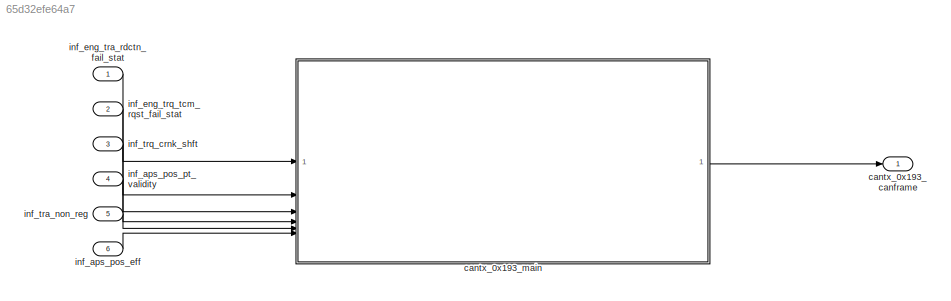
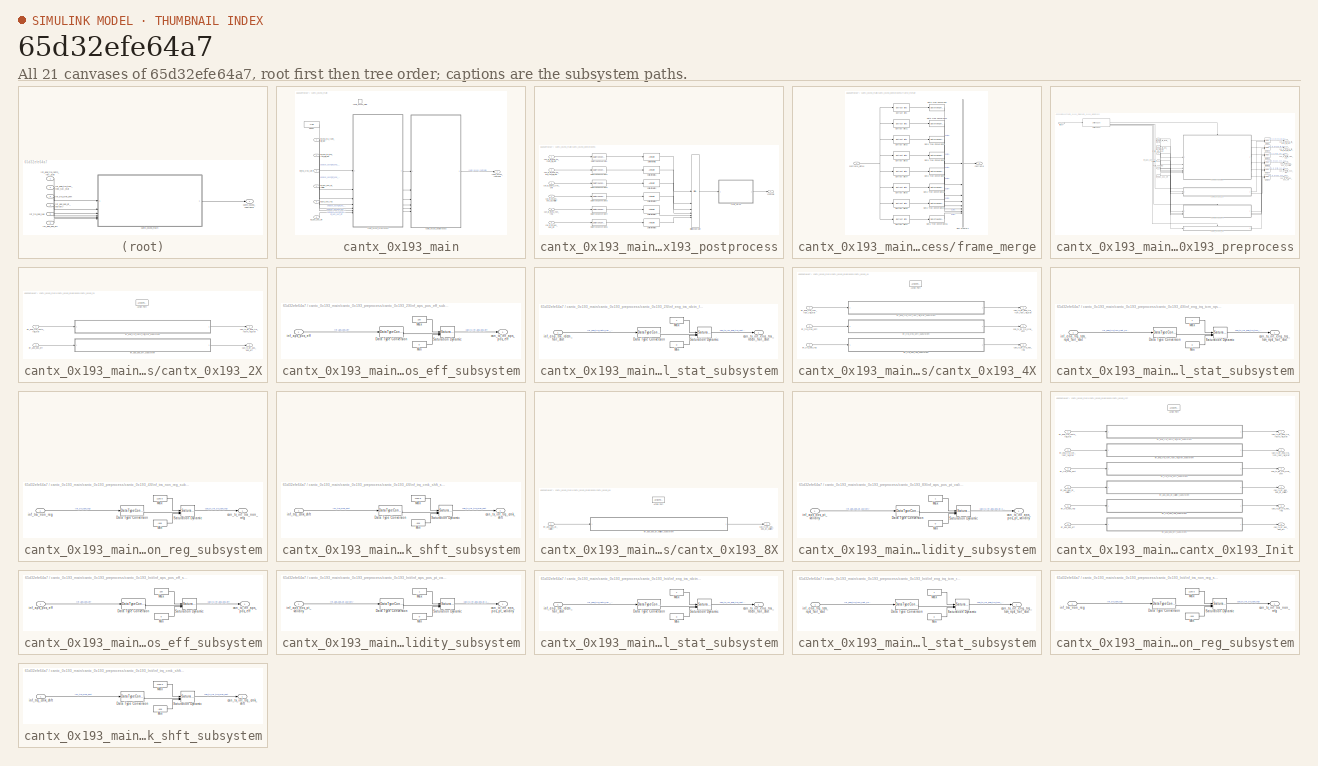
[diagram: thumbnail index - all 21 canvases of the model, root first then tree order]
MODEL slx_65d32efe64a7
KIND model
CONFIG AbsTol = auto
CONFIG EnableMultiTasking = off
CONFIG FixedStep = auto
CONFIG MaxStep = auto
CONFIG MinStep = auto
CONFIG RelTol = 1e-3
CONFIG SampleTimeConstraint = Unconstrained
CONFIG SolverName = FixedStepAuto
CONFIG StartTime = 0.0
CONFIG StopTime = 10.0
BLOCK [Outport] cantx_0x193_canframe
BLOCK [SubSystem] cantx_0x193_main
  TreatAsAtomicUnit = on
BLOCK [Outport] cantx_0x193_main/cantx_0x193_canframe
BLOCK [TriggerPort] cantx_0x193_main/cantx_0x193_main
  FunctionName = cantx_0x193_main
  FunctionVisibility = scoped
  IsSimulinkFunction = on
  StatesWhenEnabling = held
  TriggerType = function-call
  VariantControl = (inherit)
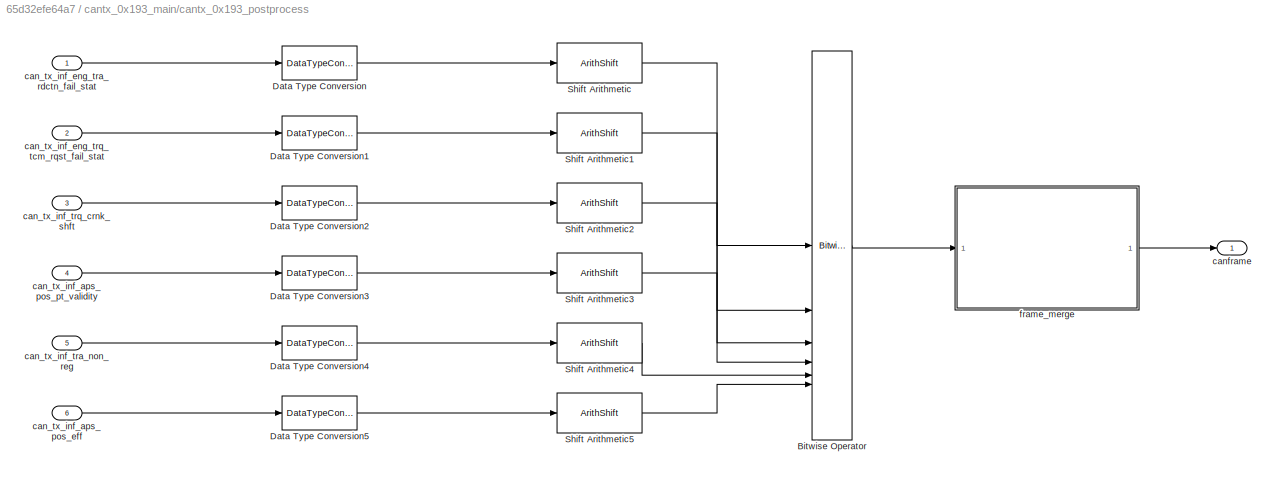
BLOCK [SubSystem] cantx_0x193_main/cantx_0x193_postprocess
BLOCK [Reference] cantx_0x193_main/cantx_0x193_postprocess/Bitwise Operator  REF=simulink/Logic and Bit
Operations/Bitwise
Operator
  SourceBlock = simulink/Logic and Bit\nOperations/Bitwise\nOperator
  SourceType = Bitwise Operator
BLOCK [DataTypeConversion] cantx_0x193_main/cantx_0x193_postprocess/Data Type Conversion
  ConvertRealWorld = Stored Integer (SI)
  OutDataTypeStr = uint64
  RndMeth = Floor
  SaturateOnIntegerOverflow = off
BLOCK [DataTypeConversion] cantx_0x193_main/cantx_0x193_postprocess/Data Type Conversion1
  ConvertRealWorld = Stored Integer (SI)
  OutDataTypeStr = uint64
  RndMeth = Floor
  SaturateOnIntegerOverflow = off
BLOCK [DataTypeConversion] cantx_0x193_main/cantx_0x193_postprocess/Data Type Conversion2
  ConvertRealWorld = Stored Integer (SI)
  OutDataTypeStr = uint64
  RndMeth = Floor
  SaturateOnIntegerOverflow = off
BLOCK [DataTypeConversion] cantx_0x193_main/cantx_0x193_postprocess/Data Type Conversion3
  ConvertRealWorld = Stored Integer (SI)
  OutDataTypeStr = uint64
  RndMeth = Floor
  SaturateOnIntegerOverflow = off
BLOCK [DataTypeConversion] cantx_0x193_main/cantx_0x193_postprocess/Data Type Conversion4
  ConvertRealWorld = Stored Integer (SI)
  OutDataTypeStr = uint64
  RndMeth = Floor
  SaturateOnIntegerOverflow = off
BLOCK [DataTypeConversion] cantx_0x193_main/cantx_0x193_postprocess/Data Type Conversion5
  ConvertRealWorld = Stored Integer (SI)
  OutDataTypeStr = uint64
  RndMeth = Floor
  SaturateOnIntegerOverflow = off
BLOCK [ArithShift] cantx_0x193_main/cantx_0x193_postprocess/Shift Arithmetic
  BitShiftDirection = Left
  BitShiftNumber = 63
  InputPortMap = u0
BLOCK [ArithShift] cantx_0x193_main/cantx_0x193_postprocess/Shift Arithmetic1
  BitShiftDirection = Left
  BitShiftNumber = 62
  InputPortMap = u0
BLOCK [ArithShift] cantx_0x193_main/cantx_0x193_postprocess/Shift Arithmetic2
  BitShiftDirection = Left
  BitShiftNumber = 48
  InputPortMap = u0
BLOCK [ArithShift] cantx_0x193_main/cantx_0x193_postprocess/Shift Arithmetic3
  BitShiftDirection = Left
  BitShiftNumber = 31
  InputPortMap = u0
BLOCK [ArithShift] cantx_0x193_main/cantx_0x193_postprocess/Shift Arithmetic4
  BitShiftDirection = Left
  BitShiftNumber = 16
  InputPortMap = u0
BLOCK [ArithShift] cantx_0x193_main/cantx_0x193_postprocess/Shift Arithmetic5
  BitShiftDirection = Left
  BitShiftNumber = 8
  InputPortMap = u0
BLOCK [Inport] cantx_0x193_main/cantx_0x193_postprocess/can_tx_inf_aps_pos_eff
  Port = 6
BLOCK [Inport] cantx_0x193_main/cantx_0x193_postprocess/can_tx_inf_aps_pos_pt_validity
  Port = 4
BLOCK [Inport] cantx_0x193_main/cantx_0x193_postprocess/can_tx_inf_eng_tra_rdctn_fail_stat
BLOCK [Inport] cantx_0x193_main/cantx_0x193_postprocess/can_tx_inf_eng_trq_tcm_rqst_fail_stat
  Port = 2
BLOCK [Inport] cantx_0x193_main/cantx_0x193_postprocess/can_tx_inf_tra_non_reg
  Port = 5
BLOCK [Inport] cantx_0x193_main/cantx_0x193_postprocess/can_tx_inf_trq_crnk_shft
  Port = 3
BLOCK [Outport] cantx_0x193_main/cantx_0x193_postprocess/canframe
BLOCK [SubSystem] cantx_0x193_main/cantx_0x193_postprocess/frame_merge
  RTWSystemCode = Reusable function
BLOCK [BusCreator] cantx_0x193_main/cantx_0x193_postprocess/frame_merge/Bus Creator1
  DisplayOption = bar
  InheritFromInputs = on
  Inputs = Byte0,Byte1,Byte2,Byte3,Byte4,Byte5,Byte6,Byte7
  NonVirtualBus = on
  OutDataTypeStr = Bus: canframe
BLOCK [DataTypeConversion] cantx_0x193_main/cantx_0x193_postprocess/frame_merge/Data Type Conversion
  ConvertRealWorld = Stored Integer (SI)
  OutDataTypeStr = uint8
  RndMeth = Floor
  SaturateOnIntegerOverflow = off
BLOCK [DataTypeConversion] cantx_0x193_main/cantx_0x193_postprocess/frame_merge/Data Type Conversion1
  ConvertRealWorld = Stored Integer (SI)
  OutDataTypeStr = uint8
  RndMeth = Floor
  SaturateOnIntegerOverflow = off
BLOCK [DataTypeConversion] cantx_0x193_main/cantx_0x193_postprocess/frame_merge/Data Type Conversion13
  ConvertRealWorld = Stored Integer (SI)
  OutDataTypeStr = uint8
  RndMeth = Floor
  SaturateOnIntegerOverflow = off
BLOCK [DataTypeConversion] cantx_0x193_main/cantx_0x193_postprocess/frame_merge/Data Type Conversion14
  ConvertRealWorld = Stored Integer (SI)
  OutDataTypeStr = uint8
  RndMeth = Floor
  SaturateOnIntegerOverflow = off
BLOCK [DataTypeConversion] cantx_0x193_main/cantx_0x193_postprocess/frame_merge/Data Type Conversion15
  ConvertRealWorld = Stored Integer (SI)
  OutDataTypeStr = uint8
  RndMeth = Floor
  SaturateOnIntegerOverflow = off
BLOCK [DataTypeConversion] cantx_0x193_main/cantx_0x193_postprocess/frame_merge/Data Type Conversion2
  ConvertRealWorld = Stored Integer (SI)
  OutDataTypeStr = uint8
  RndMeth = Floor
  SaturateOnIntegerOverflow = off
BLOCK [DataTypeConversion] cantx_0x193_main/cantx_0x193_postprocess/frame_merge/Data Type Conversion3
  ConvertRealWorld = Stored Integer (SI)
  OutDataTypeStr = uint8
  RndMeth = Floor
  SaturateOnIntegerOverflow = off
BLOCK [DataTypeConversion] cantx_0x193_main/cantx_0x193_postprocess/frame_merge/Data Type Conversion4
  ConvertRealWorld = Stored Integer (SI)
  OutDataTypeStr = uint8
  RndMeth = Floor
  SaturateOnIntegerOverflow = off
BLOCK [Reference] cantx_0x193_main/cantx_0x193_postprocess/frame_merge/Extract Bits  REF=simulink/Logic and Bit
Operations/Extract Bits
  SourceBlock = simulink/Logic and Bit\nOperations/Extract Bits
  SourceType = Extract Bits
BLOCK [Reference] cantx_0x193_main/cantx_0x193_postprocess/frame_merge/Extract Bits1  REF=simulink/Logic and Bit
Operations/Extract Bits
  SourceBlock = simulink/Logic and Bit\nOperations/Extract Bits
  SourceType = Extract Bits
BLOCK [Reference] cantx_0x193_main/cantx_0x193_postprocess/frame_merge/Extract Bits2  REF=simulink/Logic and Bit
Operations/Extract Bits
  SourceBlock = simulink/Logic and Bit\nOperations/Extract Bits
  SourceType = Extract Bits
BLOCK [Reference] cantx_0x193_main/cantx_0x193_postprocess/frame_merge/Extract Bits3  REF=simulink/Logic and Bit
Operations/Extract Bits
  SourceBlock = simulink/Logic and Bit\nOperations/Extract Bits
  SourceType = Extract Bits
BLOCK [Reference] cantx_0x193_main/cantx_0x193_postprocess/frame_merge/Extract Bits4  REF=simulink/Logic and Bit
Operations/Extract Bits
  SourceBlock = simulink/Logic and Bit\nOperations/Extract Bits
  SourceType = Extract Bits
BLOCK [Reference] cantx_0x193_main/cantx_0x193_postprocess/frame_merge/Extract Bits5  REF=simulink/Logic and Bit
Operations/Extract Bits
  SourceBlock = simulink/Logic and Bit\nOperations/Extract Bits
  SourceType = Extract Bits
BLOCK [Reference] cantx_0x193_main/cantx_0x193_postprocess/frame_merge/Extract Bits6  REF=simulink/Logic and Bit
Operations/Extract Bits
  SourceBlock = simulink/Logic and Bit\nOperations/Extract Bits
  SourceType = Extract Bits
BLOCK [Reference] cantx_0x193_main/cantx_0x193_postprocess/frame_merge/Extract Bits7  REF=simulink/Logic and Bit
Operations/Extract Bits
  SourceBlock = simulink/Logic and Bit\nOperations/Extract Bits
  SourceType = Extract Bits
BLOCK [Outport] cantx_0x193_main/cantx_0x193_postprocess/frame_merge/canframe
BLOCK [Inport] cantx_0x193_main/cantx_0x193_postprocess/frame_merge/canframe_uint64
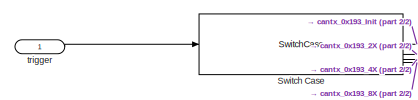
[diagram: cantx_0x193_main/cantx_0x193_preprocess - part 1/2, top left region]
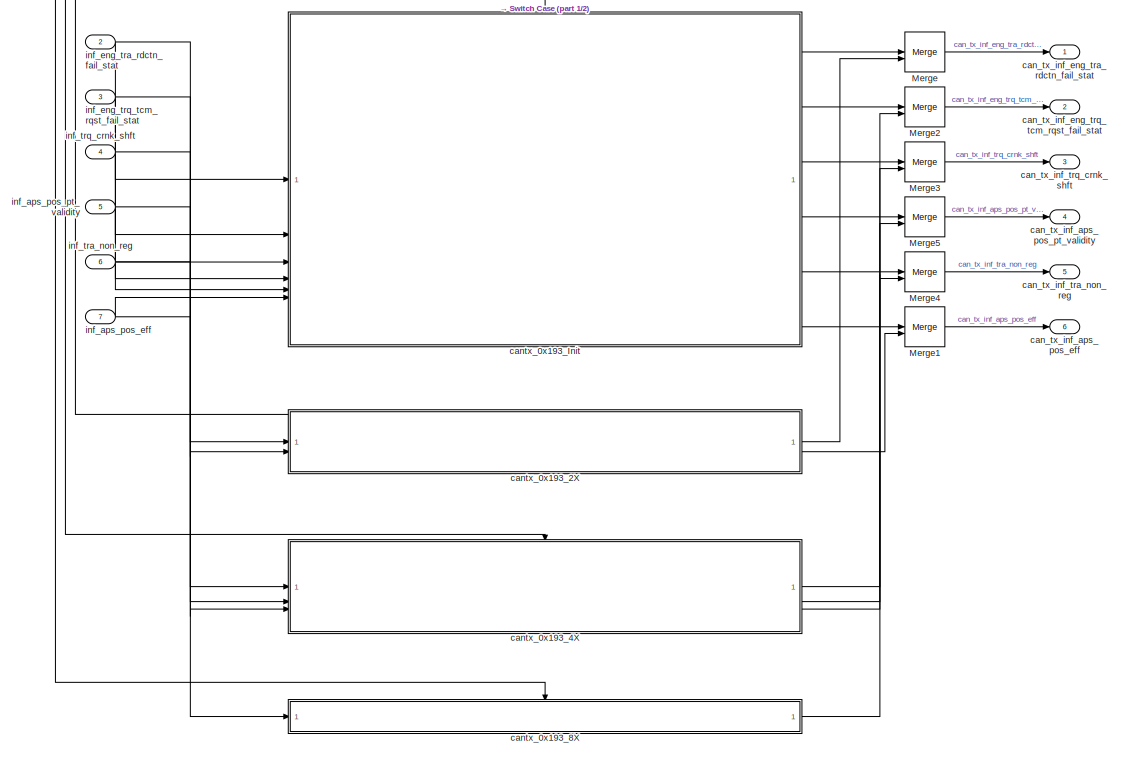
[diagram: cantx_0x193_main/cantx_0x193_preprocess - part 2/2, right side, full height]
BLOCK [SubSystem] cantx_0x193_main/cantx_0x193_preprocess
BLOCK [Merge] cantx_0x193_main/cantx_0x193_preprocess/Merge
BLOCK [Merge] cantx_0x193_main/cantx_0x193_preprocess/Merge1
BLOCK [Merge] cantx_0x193_main/cantx_0x193_preprocess/Merge2
BLOCK [Merge] cantx_0x193_main/cantx_0x193_preprocess/Merge3
BLOCK [Merge] cantx_0x193_main/cantx_0x193_preprocess/Merge4
BLOCK [Merge] cantx_0x193_main/cantx_0x193_preprocess/Merge5
BLOCK [SwitchCase] cantx_0x193_main/cantx_0x193_preprocess/Switch Case
  CaseConditions = {PLCANI_APCNTL_SET_INF_TYPE.PLCANI_APCNTL_SET_INF_INIT,PLCANI_APCNTL_SET_INF_TYPE.PLCANI_APCNTL_SET_INF_2X,PLCANI_APCNTL_SET_INF_TYPE.PLCANI_APCNTL_SET_INF_4X,PLCANI_APCNTL_SET_INF_TYPE.PLCANI_APCNTL_SET_INF_8X}
  ShowDefaultCase = off
BLOCK [Outport] cantx_0x193_main/cantx_0x193_preprocess/can_tx_inf_aps_pos_eff
  Port = 6
BLOCK [Outport] cantx_0x193_main/cantx_0x193_preprocess/can_tx_inf_aps_pos_pt_validity
  Port = 4
BLOCK [Outport] cantx_0x193_main/cantx_0x193_preprocess/can_tx_inf_eng_tra_rdctn_fail_stat
BLOCK [Outport] cantx_0x193_main/cantx_0x193_preprocess/can_tx_inf_eng_trq_tcm_rqst_fail_stat
  Port = 2
BLOCK [Outport] cantx_0x193_main/cantx_0x193_preprocess/can_tx_inf_tra_non_reg
  Port = 5
BLOCK [Outport] cantx_0x193_main/cantx_0x193_preprocess/can_tx_inf_trq_crnk_shft
  Port = 3
BLOCK [SubSystem] cantx_0x193_main/cantx_0x193_preprocess/cantx_0x193_2X
  RTWFcnNameOpts = Use subsystem name
  RTWSystemCode = Reusable function
  TreatAsAtomicUnit = on
BLOCK [ActionPort] cantx_0x193_main/cantx_0x193_preprocess/cantx_0x193_2X/Action Port
  ActionPortLabel = case [ PLCANI_APCNTL_SET_INF_2X ]:
BLOCK [Outport] cantx_0x193_main/cantx_0x193_preprocess/cantx_0x193_2X/can_tx_inf_aps_pos_eff
  Port = 2
BLOCK [Outport] cantx_0x193_main/cantx_0x193_preprocess/cantx_0x193_2X/can_tx_inf_eng_tra_rdctn_fail_stat
BLOCK [Inport] cantx_0x193_main/cantx_0x193_preprocess/cantx_0x193_2X/inf_aps_pos_eff
  Port = 2
BLOCK [SubSystem] cantx_0x193_main/cantx_0x193_preprocess/cantx_0x193_2X/inf_aps_pos_eff_subsystem
  RTWFcnNameOpts = Use subsystem name
  RTWSystemCode = Reusable function
  TreatAsAtomicUnit = on
BLOCK [DataTypeConversion] cantx_0x193_main/cantx_0x193_preprocess/cantx_0x193_2X/inf_aps_pos_eff_subsystem/Data Type Conversion
  ConvertRealWorld = Stored Integer (SI)
  RndMeth = Floor
  SaturateOnIntegerOverflow = off
BLOCK [Constant] cantx_0x193_main/cantx_0x193_preprocess/cantx_0x193_2X/inf_aps_pos_eff_subsystem/Max
  OutDataTypeStr = Inherit: Inherit via back propagation
  Value = 100
BLOCK [Constant] cantx_0x193_main/cantx_0x193_preprocess/cantx_0x193_2X/inf_aps_pos_eff_subsystem/Min
  OutDataTypeStr = Inherit: Inherit via back propagation
  Value = 0
BLOCK [Reference] cantx_0x193_main/cantx_0x193_preprocess/cantx_0x193_2X/inf_aps_pos_eff_subsystem/Saturation Dynamic  REF=simulink/Discontinuities/Saturation
Dynamic
  SourceBlock = simulink/Discontinuities/Saturation\nDynamic
  SourceType = Saturation Dynamic
BLOCK [Outport] cantx_0x193_main/cantx_0x193_preprocess/cantx_0x193_2X/inf_aps_pos_eff_subsystem/can_tx_inf_aps_pos_eff
BLOCK [Inport] cantx_0x193_main/cantx_0x193_preprocess/cantx_0x193_2X/inf_aps_pos_eff_subsystem/inf_aps_pos_eff
BLOCK [Inport] cantx_0x193_main/cantx_0x193_preprocess/cantx_0x193_2X/inf_eng_tra_rdctn_fail_stat
BLOCK [SubSystem] cantx_0x193_main/cantx_0x193_preprocess/cantx_0x193_2X/inf_eng_tra_rdctn_fail_stat_subsystem
  RTWFcnNameOpts = Use subsystem name
  RTWSystemCode = Reusable function
  TreatAsAtomicUnit = on
BLOCK [DataTypeConversion] cantx_0x193_main/cantx_0x193_preprocess/cantx_0x193_2X/inf_eng_tra_rdctn_fail_stat_subsystem/Data Type Conversion
  ConvertRealWorld = Stored Integer (SI)
  RndMeth = Floor
  SaturateOnIntegerOverflow = off
BLOCK [Constant] cantx_0x193_main/cantx_0x193_preprocess/cantx_0x193_2X/inf_eng_tra_rdctn_fail_stat_subsystem/Max
  OutDataTypeStr = Inherit: Inherit via back propagation
BLOCK [Constant] cantx_0x193_main/cantx_0x193_preprocess/cantx_0x193_2X/inf_eng_tra_rdctn_fail_stat_subsystem/Min
  OutDataTypeStr = Inherit: Inherit via back propagation
  Value = 0
BLOCK [Reference] cantx_0x193_main/cantx_0x193_preprocess/cantx_0x193_2X/inf_eng_tra_rdctn_fail_stat_subsystem/Saturation Dynamic  REF=simulink/Discontinuities/Saturation
Dynamic
  SourceBlock = simulink/Discontinuities/Saturation\nDynamic
  SourceType = Saturation Dynamic
BLOCK [Outport] cantx_0x193_main/cantx_0x193_preprocess/cantx_0x193_2X/inf_eng_tra_rdctn_fail_stat_subsystem/can_tx_inf_eng_tra_rdctn_fail_stat
BLOCK [Inport] cantx_0x193_main/cantx_0x193_preprocess/cantx_0x193_2X/inf_eng_tra_rdctn_fail_stat_subsystem/inf_eng_tra_rdctn_fail_stat
BLOCK [SubSystem] cantx_0x193_main/cantx_0x193_preprocess/cantx_0x193_4X
  RTWFcnNameOpts = Use subsystem name
  RTWSystemCode = Reusable function
  TreatAsAtomicUnit = on
BLOCK [ActionPort] cantx_0x193_main/cantx_0x193_preprocess/cantx_0x193_4X/Action Port
  ActionPortLabel = case [ PLCANI_APCNTL_SET_INF_4X ]:
BLOCK [Outport] cantx_0x193_main/cantx_0x193_preprocess/cantx_0x193_4X/can_tx_inf_eng_trq_tcm_rqst_fail_stat
BLOCK [Outport] cantx_0x193_main/cantx_0x193_preprocess/cantx_0x193_4X/can_tx_inf_tra_non_reg
  Port = 3
BLOCK [Outport] cantx_0x193_main/cantx_0x193_preprocess/cantx_0x193_4X/can_tx_inf_trq_crnk_shft
  Port = 2
BLOCK [Inport] cantx_0x193_main/cantx_0x193_preprocess/cantx_0x193_4X/inf_eng_trq_tcm_rqst_fail_stat
BLOCK [SubSystem] cantx_0x193_main/cantx_0x193_preprocess/cantx_0x193_4X/inf_eng_trq_tcm_rqst_fail_stat_subsystem
  RTWFcnNameOpts = Use subsystem name
  RTWSystemCode = Reusable function
  TreatAsAtomicUnit = on
BLOCK [DataTypeConversion] cantx_0x193_main/cantx_0x193_preprocess/cantx_0x193_4X/inf_eng_trq_tcm_rqst_fail_stat_subsystem/Data Type Conversion
  ConvertRealWorld = Stored Integer (SI)
  RndMeth = Floor
  SaturateOnIntegerOverflow = off
BLOCK [Constant] cantx_0x193_main/cantx_0x193_preprocess/cantx_0x193_4X/inf_eng_trq_tcm_rqst_fail_stat_subsystem/Max
  OutDataTypeStr = Inherit: Inherit via back propagation
BLOCK [Constant] cantx_0x193_main/cantx_0x193_preprocess/cantx_0x193_4X/inf_eng_trq_tcm_rqst_fail_stat_subsystem/Min
  OutDataTypeStr = Inherit: Inherit via back propagation
  Value = 0
BLOCK [Reference] cantx_0x193_main/cantx_0x193_preprocess/cantx_0x193_4X/inf_eng_trq_tcm_rqst_fail_stat_subsystem/Saturation Dynamic  REF=simulink/Discontinuities/Saturation
Dynamic
  SourceBlock = simulink/Discontinuities/Saturation\nDynamic
  SourceType = Saturation Dynamic
BLOCK [Outport] cantx_0x193_main/cantx_0x193_preprocess/cantx_0x193_4X/inf_eng_trq_tcm_rqst_fail_stat_subsystem/can_tx_inf_eng_trq_tcm_rqst_fail_stat
BLOCK [Inport] cantx_0x193_main/cantx_0x193_preprocess/cantx_0x193_4X/inf_eng_trq_tcm_rqst_fail_stat_subsystem/inf_eng_trq_tcm_rqst_fail_stat
BLOCK [Inport] cantx_0x193_main/cantx_0x193_preprocess/cantx_0x193_4X/inf_tra_non_reg
  Port = 3
BLOCK [SubSystem] cantx_0x193_main/cantx_0x193_preprocess/cantx_0x193_4X/inf_tra_non_reg_subsystem
  RTWFcnNameOpts = Use subsystem name
  RTWSystemCode = Reusable function
  TreatAsAtomicUnit = on
BLOCK [DataTypeConversion] cantx_0x193_main/cantx_0x193_preprocess/cantx_0x193_4X/inf_tra_non_reg_subsystem/Data Type Conversion
  ConvertRealWorld = Stored Integer (SI)
  RndMeth = Floor
  SaturateOnIntegerOverflow = off
BLOCK [Constant] cantx_0x193_main/cantx_0x193_preprocess/cantx_0x193_4X/inf_tra_non_reg_subsystem/Max
  OutDataTypeStr = Inherit: Inherit via back propagation
  Value = 1199.5
BLOCK [Constant] cantx_0x193_main/cantx_0x193_preprocess/cantx_0x193_4X/inf_tra_non_reg_subsystem/Min
  OutDataTypeStr = Inherit: Inherit via back propagation
  Value = -848
BLOCK [Reference] cantx_0x193_main/cantx_0x193_preprocess/cantx_0x193_4X/inf_tra_non_reg_subsystem/Saturation Dynamic  REF=simulink/Discontinuities/Saturation
Dynamic
  SourceBlock = simulink/Discontinuities/Saturation\nDynamic
  SourceType = Saturation Dynamic
BLOCK [Outport] cantx_0x193_main/cantx_0x193_preprocess/cantx_0x193_4X/inf_tra_non_reg_subsystem/can_tx_inf_tra_non_reg
BLOCK [Inport] cantx_0x193_main/cantx_0x193_preprocess/cantx_0x193_4X/inf_tra_non_reg_subsystem/inf_tra_non_reg
BLOCK [Inport] cantx_0x193_main/cantx_0x193_preprocess/cantx_0x193_4X/inf_trq_crnk_shft
  Port = 2
BLOCK [SubSystem] cantx_0x193_main/cantx_0x193_preprocess/cantx_0x193_4X/inf_trq_crnk_shft_subsystem
  RTWFcnNameOpts = Use subsystem name
  RTWSystemCode = Reusable function
  TreatAsAtomicUnit = on
BLOCK [DataTypeConversion] cantx_0x193_main/cantx_0x193_preprocess/cantx_0x193_4X/inf_trq_crnk_shft_subsystem/Data Type Conversion
  ConvertRealWorld = Stored Integer (SI)
  RndMeth = Floor
  SaturateOnIntegerOverflow = off
BLOCK [Constant] cantx_0x193_main/cantx_0x193_preprocess/cantx_0x193_4X/inf_trq_crnk_shft_subsystem/Max
  OutDataTypeStr = Inherit: Inherit via back propagation
  Value = 1199.5
BLOCK [Constant] cantx_0x193_main/cantx_0x193_preprocess/cantx_0x193_4X/inf_trq_crnk_shft_subsystem/Min
  OutDataTypeStr = Inherit: Inherit via back propagation
  Value = -848
BLOCK [Reference] cantx_0x193_main/cantx_0x193_preprocess/cantx_0x193_4X/inf_trq_crnk_shft_subsystem/Saturation Dynamic  REF=simulink/Discontinuities/Saturation
Dynamic
  SourceBlock = simulink/Discontinuities/Saturation\nDynamic
  SourceType = Saturation Dynamic
BLOCK [Outport] cantx_0x193_main/cantx_0x193_preprocess/cantx_0x193_4X/inf_trq_crnk_shft_subsystem/can_tx_inf_trq_crnk_shft
BLOCK [Inport] cantx_0x193_main/cantx_0x193_preprocess/cantx_0x193_4X/inf_trq_crnk_shft_subsystem/inf_trq_crnk_shft
BLOCK [SubSystem] cantx_0x193_main/cantx_0x193_preprocess/cantx_0x193_8X
  RTWFcnNameOpts = Use subsystem name
  RTWSystemCode = Reusable function
  TreatAsAtomicUnit = on
BLOCK [ActionPort] cantx_0x193_main/cantx_0x193_preprocess/cantx_0x193_8X/Action Port
  ActionPortLabel = case [ PLCANI_APCNTL_SET_INF_8X ]:
BLOCK [Outport] cantx_0x193_main/cantx_0x193_preprocess/cantx_0x193_8X/can_tx_inf_aps_pos_pt_validity
BLOCK [Inport] cantx_0x193_main/cantx_0x193_preprocess/cantx_0x193_8X/inf_aps_pos_pt_validity
BLOCK [SubSystem] cantx_0x193_main/cantx_0x193_preprocess/cantx_0x193_8X/inf_aps_pos_pt_validity_subsystem
  RTWFcnNameOpts = Use subsystem name
  RTWSystemCode = Reusable function
  TreatAsAtomicUnit = on
BLOCK [DataTypeConversion] cantx_0x193_main/cantx_0x193_preprocess/cantx_0x193_8X/inf_aps_pos_pt_validity_subsystem/Data Type Conversion
  ConvertRealWorld = Stored Integer (SI)
  RndMeth = Floor
  SaturateOnIntegerOverflow = off
BLOCK [Constant] cantx_0x193_main/cantx_0x193_preprocess/cantx_0x193_8X/inf_aps_pos_pt_validity_subsystem/Max
  OutDataTypeStr = Inherit: Inherit via back propagation
BLOCK [Constant] cantx_0x193_main/cantx_0x193_preprocess/cantx_0x193_8X/inf_aps_pos_pt_validity_subsystem/Min
  OutDataTypeStr = Inherit: Inherit via back propagation
  Value = 0
BLOCK [Reference] cantx_0x193_main/cantx_0x193_preprocess/cantx_0x193_8X/inf_aps_pos_pt_validity_subsystem/Saturation Dynamic  REF=simulink/Discontinuities/Saturation
Dynamic
  SourceBlock = simulink/Discontinuities/Saturation\nDynamic
  SourceType = Saturation Dynamic
BLOCK [Outport] cantx_0x193_main/cantx_0x193_preprocess/cantx_0x193_8X/inf_aps_pos_pt_validity_subsystem/can_tx_inf_aps_pos_pt_validity
BLOCK [Inport] cantx_0x193_main/cantx_0x193_preprocess/cantx_0x193_8X/inf_aps_pos_pt_validity_subsystem/inf_aps_pos_pt_validity
BLOCK [SubSystem] cantx_0x193_main/cantx_0x193_preprocess/cantx_0x193_Init
  RTWFcnNameOpts = Use subsystem name
  RTWSystemCode = Reusable function
  TreatAsAtomicUnit = on
BLOCK [ActionPort] cantx_0x193_main/cantx_0x193_preprocess/cantx_0x193_Init/Action Port
  ActionPortLabel = case [ PLCANI_APCNTL_SET_INF_INIT ]:
BLOCK [Outport] cantx_0x193_main/cantx_0x193_preprocess/cantx_0x193_Init/can_tx_inf_aps_pos_eff
  Port = 6
BLOCK [Outport] cantx_0x193_main/cantx_0x193_preprocess/cantx_0x193_Init/can_tx_inf_aps_pos_pt_validity
  Port = 4
BLOCK [Outport] cantx_0x193_main/cantx_0x193_preprocess/cantx_0x193_Init/can_tx_inf_eng_tra_rdctn_fail_stat
BLOCK [Outport] cantx_0x193_main/cantx_0x193_preprocess/cantx_0x193_Init/can_tx_inf_eng_trq_tcm_rqst_fail_stat
  Port = 2
BLOCK [Outport] cantx_0x193_main/cantx_0x193_preprocess/cantx_0x193_Init/can_tx_inf_tra_non_reg
  Port = 5
BLOCK [Outport] cantx_0x193_main/cantx_0x193_preprocess/cantx_0x193_Init/can_tx_inf_trq_crnk_shft
  Port = 3
BLOCK [Inport] cantx_0x193_main/cantx_0x193_preprocess/cantx_0x193_Init/inf_aps_pos_eff
  Port = 6
BLOCK [SubSystem] cantx_0x193_main/cantx_0x193_preprocess/cantx_0x193_Init/inf_aps_pos_eff_subsystem
  RTWFcnNameOpts = Use subsystem name
  RTWSystemCode = Reusable function
  TreatAsAtomicUnit = on
BLOCK [DataTypeConversion] cantx_0x193_main/cantx_0x193_preprocess/cantx_0x193_Init/inf_aps_pos_eff_subsystem/Data Type Conversion
  ConvertRealWorld = Stored Integer (SI)
  RndMeth = Floor
  SaturateOnIntegerOverflow = off
BLOCK [Constant] cantx_0x193_main/cantx_0x193_preprocess/cantx_0x193_Init/inf_aps_pos_eff_subsystem/Max
  OutDataTypeStr = Inherit: Inherit via back propagation
  Value = 100
BLOCK [Constant] cantx_0x193_main/cantx_0x193_preprocess/cantx_0x193_Init/inf_aps_pos_eff_subsystem/Min
  OutDataTypeStr = Inherit: Inherit via back propagation
  Value = 0
BLOCK [Reference] cantx_0x193_main/cantx_0x193_preprocess/cantx_0x193_Init/inf_aps_pos_eff_subsystem/Saturation Dynamic  REF=simulink/Discontinuities/Saturation
Dynamic
  SourceBlock = simulink/Discontinuities/Saturation\nDynamic
  SourceType = Saturation Dynamic
BLOCK [Outport] cantx_0x193_main/cantx_0x193_preprocess/cantx_0x193_Init/inf_aps_pos_eff_subsystem/can_tx_inf_aps_pos_eff
BLOCK [Inport] cantx_0x193_main/cantx_0x193_preprocess/cantx_0x193_Init/inf_aps_pos_eff_subsystem/inf_aps_pos_eff
BLOCK [Inport] cantx_0x193_main/cantx_0x193_preprocess/cantx_0x193_Init/inf_aps_pos_pt_validity
  Port = 4
BLOCK [SubSystem] cantx_0x193_main/cantx_0x193_preprocess/cantx_0x193_Init/inf_aps_pos_pt_validity_subsystem
  RTWFcnNameOpts = Use subsystem name
  RTWSystemCode = Reusable function
  TreatAsAtomicUnit = on
BLOCK [DataTypeConversion] cantx_0x193_main/cantx_0x193_preprocess/cantx_0x193_Init/inf_aps_pos_pt_validity_subsystem/Data Type Conversion
  ConvertRealWorld = Stored Integer (SI)
  RndMeth = Floor
  SaturateOnIntegerOverflow = off
BLOCK [Constant] cantx_0x193_main/cantx_0x193_preprocess/cantx_0x193_Init/inf_aps_pos_pt_validity_subsystem/Max
  OutDataTypeStr = Inherit: Inherit via back propagation
BLOCK [Constant] cantx_0x193_main/cantx_0x193_preprocess/cantx_0x193_Init/inf_aps_pos_pt_validity_subsystem/Min
  OutDataTypeStr = Inherit: Inherit via back propagation
  Value = 0
BLOCK [Reference] cantx_0x193_main/cantx_0x193_preprocess/cantx_0x193_Init/inf_aps_pos_pt_validity_subsystem/Saturation Dynamic  REF=simulink/Discontinuities/Saturation
Dynamic
  SourceBlock = simulink/Discontinuities/Saturation\nDynamic
  SourceType = Saturation Dynamic
BLOCK [Outport] cantx_0x193_main/cantx_0x193_preprocess/cantx_0x193_Init/inf_aps_pos_pt_validity_subsystem/can_tx_inf_aps_pos_pt_validity
BLOCK [Inport] cantx_0x193_main/cantx_0x193_preprocess/cantx_0x193_Init/inf_aps_pos_pt_validity_subsystem/inf_aps_pos_pt_validity
BLOCK [Inport] cantx_0x193_main/cantx_0x193_preprocess/cantx_0x193_Init/inf_eng_tra_rdctn_fail_stat
BLOCK [SubSystem] cantx_0x193_main/cantx_0x193_preprocess/cantx_0x193_Init/inf_eng_tra_rdctn_fail_stat_subsystem
  RTWFcnNameOpts = Use subsystem name
  RTWSystemCode = Reusable function
  TreatAsAtomicUnit = on
BLOCK [DataTypeConversion] cantx_0x193_main/cantx_0x193_preprocess/cantx_0x193_Init/inf_eng_tra_rdctn_fail_stat_subsystem/Data Type Conversion
  ConvertRealWorld = Stored Integer (SI)
  RndMeth = Floor
  SaturateOnIntegerOverflow = off
BLOCK [Constant] cantx_0x193_main/cantx_0x193_preprocess/cantx_0x193_Init/inf_eng_tra_rdctn_fail_stat_subsystem/Max
  OutDataTypeStr = Inherit: Inherit via back propagation
BLOCK [Constant] cantx_0x193_main/cantx_0x193_preprocess/cantx_0x193_Init/inf_eng_tra_rdctn_fail_stat_subsystem/Min
  OutDataTypeStr = Inherit: Inherit via back propagation
  Value = 0
BLOCK [Reference] cantx_0x193_main/cantx_0x193_preprocess/cantx_0x193_Init/inf_eng_tra_rdctn_fail_stat_subsystem/Saturation Dynamic  REF=simulink/Discontinuities/Saturation
Dynamic
  SourceBlock = simulink/Discontinuities/Saturation\nDynamic
  SourceType = Saturation Dynamic
BLOCK [Outport] cantx_0x193_main/cantx_0x193_preprocess/cantx_0x193_Init/inf_eng_tra_rdctn_fail_stat_subsystem/can_tx_inf_eng_tra_rdctn_fail_stat
BLOCK [Inport] cantx_0x193_main/cantx_0x193_preprocess/cantx_0x193_Init/inf_eng_tra_rdctn_fail_stat_subsystem/inf_eng_tra_rdctn_fail_stat
BLOCK [Inport] cantx_0x193_main/cantx_0x193_preprocess/cantx_0x193_Init/inf_eng_trq_tcm_rqst_fail_stat
  Port = 2
BLOCK [SubSystem] cantx_0x193_main/cantx_0x193_preprocess/cantx_0x193_Init/inf_eng_trq_tcm_rqst_fail_stat_subsystem
  RTWFcnNameOpts = Use subsystem name
  RTWSystemCode = Reusable function
  TreatAsAtomicUnit = on
BLOCK [DataTypeConversion] cantx_0x193_main/cantx_0x193_preprocess/cantx_0x193_Init/inf_eng_trq_tcm_rqst_fail_stat_subsystem/Data Type Conversion
  ConvertRealWorld = Stored Integer (SI)
  RndMeth = Floor
  SaturateOnIntegerOverflow = off
BLOCK [Constant] cantx_0x193_main/cantx_0x193_preprocess/cantx_0x193_Init/inf_eng_trq_tcm_rqst_fail_stat_subsystem/Max
  OutDataTypeStr = Inherit: Inherit via back propagation
BLOCK [Constant] cantx_0x193_main/cantx_0x193_preprocess/cantx_0x193_Init/inf_eng_trq_tcm_rqst_fail_stat_subsystem/Min
  OutDataTypeStr = Inherit: Inherit via back propagation
  Value = 0
BLOCK [Reference] cantx_0x193_main/cantx_0x193_preprocess/cantx_0x193_Init/inf_eng_trq_tcm_rqst_fail_stat_subsystem/Saturation Dynamic  REF=simulink/Discontinuities/Saturation
Dynamic
  SourceBlock = simulink/Discontinuities/Saturation\nDynamic
  SourceType = Saturation Dynamic
BLOCK [Outport] cantx_0x193_main/cantx_0x193_preprocess/cantx_0x193_Init/inf_eng_trq_tcm_rqst_fail_stat_subsystem/can_tx_inf_eng_trq_tcm_rqst_fail_stat
BLOCK [Inport] cantx_0x193_main/cantx_0x193_preprocess/cantx_0x193_Init/inf_eng_trq_tcm_rqst_fail_stat_subsystem/inf_eng_trq_tcm_rqst_fail_stat
BLOCK [Inport] cantx_0x193_main/cantx_0x193_preprocess/cantx_0x193_Init/inf_tra_non_reg
  Port = 5
BLOCK [SubSystem] cantx_0x193_main/cantx_0x193_preprocess/cantx_0x193_Init/inf_tra_non_reg_subsystem
  RTWFcnNameOpts = Use subsystem name
  RTWSystemCode = Reusable function
  TreatAsAtomicUnit = on
BLOCK [DataTypeConversion] cantx_0x193_main/cantx_0x193_preprocess/cantx_0x193_Init/inf_tra_non_reg_subsystem/Data Type Conversion
  ConvertRealWorld = Stored Integer (SI)
  RndMeth = Floor
  SaturateOnIntegerOverflow = off
BLOCK [Constant] cantx_0x193_main/cantx_0x193_preprocess/cantx_0x193_Init/inf_tra_non_reg_subsystem/Max
  OutDataTypeStr = Inherit: Inherit via back propagation
  Value = 1199.5
BLOCK [Constant] cantx_0x193_main/cantx_0x193_preprocess/cantx_0x193_Init/inf_tra_non_reg_subsystem/Min
  OutDataTypeStr = Inherit: Inherit via back propagation
  Value = -848
BLOCK [Reference] cantx_0x193_main/cantx_0x193_preprocess/cantx_0x193_Init/inf_tra_non_reg_subsystem/Saturation Dynamic  REF=simulink/Discontinuities/Saturation
Dynamic
  SourceBlock = simulink/Discontinuities/Saturation\nDynamic
  SourceType = Saturation Dynamic
BLOCK [Outport] cantx_0x193_main/cantx_0x193_preprocess/cantx_0x193_Init/inf_tra_non_reg_subsystem/can_tx_inf_tra_non_reg
BLOCK [Inport] cantx_0x193_main/cantx_0x193_preprocess/cantx_0x193_Init/inf_tra_non_reg_subsystem/inf_tra_non_reg
BLOCK [Inport] cantx_0x193_main/cantx_0x193_preprocess/cantx_0x193_Init/inf_trq_crnk_shft
  Port = 3
BLOCK [SubSystem] cantx_0x193_main/cantx_0x193_preprocess/cantx_0x193_Init/inf_trq_crnk_shft_subsystem
  RTWFcnNameOpts = Use subsystem name
  RTWSystemCode = Reusable function
  TreatAsAtomicUnit = on
BLOCK [DataTypeConversion] cantx_0x193_main/cantx_0x193_preprocess/cantx_0x193_Init/inf_trq_crnk_shft_subsystem/Data Type Conversion
  ConvertRealWorld = Stored Integer (SI)
  RndMeth = Floor
  SaturateOnIntegerOverflow = off
BLOCK [Constant] cantx_0x193_main/cantx_0x193_preprocess/cantx_0x193_Init/inf_trq_crnk_shft_subsystem/Max
  OutDataTypeStr = Inherit: Inherit via back propagation
  Value = 1199.5
BLOCK [Constant] cantx_0x193_main/cantx_0x193_preprocess/cantx_0x193_Init/inf_trq_crnk_shft_subsystem/Min
  OutDataTypeStr = Inherit: Inherit via back propagation
  Value = -848
BLOCK [Reference] cantx_0x193_main/cantx_0x193_preprocess/cantx_0x193_Init/inf_trq_crnk_shft_subsystem/Saturation Dynamic  REF=simulink/Discontinuities/Saturation
Dynamic
  SourceBlock = simulink/Discontinuities/Saturation\nDynamic
  SourceType = Saturation Dynamic
BLOCK [Outport] cantx_0x193_main/cantx_0x193_preprocess/cantx_0x193_Init/inf_trq_crnk_shft_subsystem/can_tx_inf_trq_crnk_shft
BLOCK [Inport] cantx_0x193_main/cantx_0x193_preprocess/cantx_0x193_Init/inf_trq_crnk_shft_subsystem/inf_trq_crnk_shft
BLOCK [Inport] cantx_0x193_main/cantx_0x193_preprocess/inf_aps_pos_eff
  Port = 7
BLOCK [Inport] cantx_0x193_main/cantx_0x193_preprocess/inf_aps_pos_pt_validity
  Port = 5
BLOCK [Inport] cantx_0x193_main/cantx_0x193_preprocess/inf_eng_tra_rdctn_fail_stat
  Port = 2
BLOCK [Inport] cantx_0x193_main/cantx_0x193_preprocess/inf_eng_trq_tcm_rqst_fail_stat
  Port = 3
BLOCK [Inport] cantx_0x193_main/cantx_0x193_preprocess/inf_tra_non_reg
  Port = 6
BLOCK [Inport] cantx_0x193_main/cantx_0x193_preprocess/inf_trq_crnk_shft
  Port = 4
BLOCK [Inport] cantx_0x193_main/cantx_0x193_preprocess/trigger
BLOCK [Inport] cantx_0x193_main/inf_aps_pos_eff
  Port = 6
BLOCK [Inport] cantx_0x193_main/inf_aps_pos_pt_validity
  Port = 4
BLOCK [Inport] cantx_0x193_main/inf_eng_tra_rdctn_fail_stat
BLOCK [Inport] cantx_0x193_main/inf_eng_trq_tcm_rqst_fail_stat
  Port = 2
BLOCK [Inport] cantx_0x193_main/inf_tra_non_reg
  Port = 5
BLOCK [Inport] cantx_0x193_main/inf_trq_crnk_shft
  Port = 3
BLOCK [ArgIn] cantx_0x193_main/trigger
  ArgumentName = trigger
  DisableCoverage = on
  OutDataTypeStr = Enum: PLCANI_APCNTL_SET_INF_TYPE
BLOCK [Inport] inf_aps_pos_eff
  Port = 6
BLOCK [Inport] inf_aps_pos_pt_validity
  Port = 4
BLOCK [Inport] inf_eng_tra_rdctn_fail_stat
BLOCK [Inport] inf_eng_trq_tcm_rqst_fail_stat
  Port = 2
BLOCK [Inport] inf_tra_non_reg
  Port = 5
BLOCK [Inport] inf_trq_crnk_shft
  Port = 3
LINE cantx_0x193_main/cantx_0x193_postprocess/Bitwise Operator:1 -> cantx_0x193_main/cantx_0x193_postprocess/frame_merge:1
LINE cantx_0x193_main/cantx_0x193_postprocess/Data Type Conversion1:1 -> cantx_0x193_main/cantx_0x193_postprocess/Shift Arithmetic1:1
LINE cantx_0x193_main/cantx_0x193_postprocess/Data Type Conversion2:1 -> cantx_0x193_main/cantx_0x193_postprocess/Shift Arithmetic2:1
LINE cantx_0x193_main/cantx_0x193_postprocess/Data Type Conversion3:1 -> cantx_0x193_main/cantx_0x193_postprocess/Shift Arithmetic3:1
LINE cantx_0x193_main/cantx_0x193_postprocess/Data Type Conversion4:1 -> cantx_0x193_main/cantx_0x193_postprocess/Shift Arithmetic4:1
LINE cantx_0x193_main/cantx_0x193_postprocess/Data Type Conversion5:1 -> cantx_0x193_main/cantx_0x193_postprocess/Shift Arithmetic5:1
LINE cantx_0x193_main/cantx_0x193_postprocess/Data Type Conversion:1 -> cantx_0x193_main/cantx_0x193_postprocess/Shift Arithmetic:1
LINE cantx_0x193_main/cantx_0x193_postprocess/Shift Arithmetic1:1 -> cantx_0x193_main/cantx_0x193_postprocess/Bitwise Operator:2
LINE cantx_0x193_main/cantx_0x193_postprocess/Shift Arithmetic2:1 -> cantx_0x193_main/cantx_0x193_postprocess/Bitwise Operator:3
LINE cantx_0x193_main/cantx_0x193_postprocess/Shift Arithmetic3:1 -> cantx_0x193_main/cantx_0x193_postprocess/Bitwise Operator:4
LINE cantx_0x193_main/cantx_0x193_postprocess/Shift Arithmetic4:1 -> cantx_0x193_main/cantx_0x193_postprocess/Bitwise Operator:5
LINE cantx_0x193_main/cantx_0x193_postprocess/Shift Arithmetic5:1 -> cantx_0x193_main/cantx_0x193_postprocess/Bitwise Operator:6
LINE cantx_0x193_main/cantx_0x193_postprocess/Shift Arithmetic:1 -> cantx_0x193_main/cantx_0x193_postprocess/Bitwise Operator:1
LINE cantx_0x193_main/cantx_0x193_postprocess/can_tx_inf_aps_pos_eff:1 -> cantx_0x193_main/cantx_0x193_postprocess/Data Type Conversion5:1
LINE cantx_0x193_main/cantx_0x193_postprocess/can_tx_inf_aps_pos_pt_validity:1 -> cantx_0x193_main/cantx_0x193_postprocess/Data Type Conversion3:1
LINE cantx_0x193_main/cantx_0x193_postprocess/can_tx_inf_eng_tra_rdctn_fail_stat:1 -> cantx_0x193_main/cantx_0x193_postprocess/Data Type Conversion:1
LINE cantx_0x193_main/cantx_0x193_postprocess/can_tx_inf_eng_trq_tcm_rqst_fail_stat:1 -> cantx_0x193_main/cantx_0x193_postprocess/Data Type Conversion1:1
LINE cantx_0x193_main/cantx_0x193_postprocess/can_tx_inf_tra_non_reg:1 -> cantx_0x193_main/cantx_0x193_postprocess/Data Type Conversion4:1
LINE cantx_0x193_main/cantx_0x193_postprocess/can_tx_inf_trq_crnk_shft:1 -> cantx_0x193_main/cantx_0x193_postprocess/Data Type Conversion2:1
LINE cantx_0x193_main/cantx_0x193_postprocess/frame_merge/Bus Creator1:1 -> cantx_0x193_main/cantx_0x193_postprocess/frame_merge/canframe:1
LINE cantx_0x193_main/cantx_0x193_postprocess/frame_merge/Data Type Conversion13:1 -> cantx_0x193_main/cantx_0x193_postprocess/frame_merge/Bus Creator1:6
LINE cantx_0x193_main/cantx_0x193_postprocess/frame_merge/Data Type Conversion14:1 -> cantx_0x193_main/cantx_0x193_postprocess/frame_merge/Bus Creator1:7
LINE cantx_0x193_main/cantx_0x193_postprocess/frame_merge/Data Type Conversion15:1 -> cantx_0x193_main/cantx_0x193_postprocess/frame_merge/Bus Creator1:8
LINE cantx_0x193_main/cantx_0x193_postprocess/frame_merge/Data Type Conversion1:1 -> cantx_0x193_main/cantx_0x193_postprocess/frame_merge/Bus Creator1:2
LINE cantx_0x193_main/cantx_0x193_postprocess/frame_merge/Data Type Conversion2:1 -> cantx_0x193_main/cantx_0x193_postprocess/frame_merge/Bus Creator1:3
LINE cantx_0x193_main/cantx_0x193_postprocess/frame_merge/Data Type Conversion3:1 -> cantx_0x193_main/cantx_0x193_postprocess/frame_merge/Bus Creator1:4
LINE cantx_0x193_main/cantx_0x193_postprocess/frame_merge/Data Type Conversion4:1 -> cantx_0x193_main/cantx_0x193_postprocess/frame_merge/Bus Creator1:5
LINE cantx_0x193_main/cantx_0x193_postprocess/frame_merge/Data Type Conversion:1 -> cantx_0x193_main/cantx_0x193_postprocess/frame_merge/Bus Creator1:1
LINE cantx_0x193_main/cantx_0x193_postprocess/frame_merge/Extract Bits1:1 -> cantx_0x193_main/cantx_0x193_postprocess/frame_merge/Data Type Conversion1:1
LINE cantx_0x193_main/cantx_0x193_postprocess/frame_merge/Extract Bits2:1 -> cantx_0x193_main/cantx_0x193_postprocess/frame_merge/Data Type Conversion2:1
LINE cantx_0x193_main/cantx_0x193_postprocess/frame_merge/Extract Bits3:1 -> cantx_0x193_main/cantx_0x193_postprocess/frame_merge/Data Type Conversion3:1
LINE cantx_0x193_main/cantx_0x193_postprocess/frame_merge/Extract Bits4:1 -> cantx_0x193_main/cantx_0x193_postprocess/frame_merge/Data Type Conversion4:1
LINE cantx_0x193_main/cantx_0x193_postprocess/frame_merge/Extract Bits5:1 -> cantx_0x193_main/cantx_0x193_postprocess/frame_merge/Data Type Conversion13:1
LINE cantx_0x193_main/cantx_0x193_postprocess/frame_merge/Extract Bits6:1 -> cantx_0x193_main/cantx_0x193_postprocess/frame_merge/Data Type Conversion14:1
LINE cantx_0x193_main/cantx_0x193_postprocess/frame_merge/Extract Bits7:1 -> cantx_0x193_main/cantx_0x193_postprocess/frame_merge/Data Type Conversion15:1
LINE cantx_0x193_main/cantx_0x193_postprocess/frame_merge/Extract Bits:1 -> cantx_0x193_main/cantx_0x193_postprocess/frame_merge/Data Type Conversion:1
NET cantx_0x193_main/cantx_0x193_postprocess/frame_merge/canframe_uint64:1 -> cantx_0x193_main/cantx_0x193_postprocess/frame_merge/Extract Bits1:1, cantx_0x193_main/cantx_0x193_postprocess/frame_merge/Extract Bits2:1, cantx_0x193_main/cantx_0x193_postprocess/frame_merge/Extract Bits3:1, cantx_0x193_main/cantx_0x193_postprocess/frame_merge/Extract Bits4:1, cantx_0x193_main/cantx_0x193_postprocess/frame_merge/Extract Bits5:1, cantx_0x193_main/cantx_0x193_postprocess/frame_merge/Extract Bits6:1, cantx_0x193_main/cantx_0x193_postprocess/frame_merge/Extract Bits7:1, cantx_0x193_main/cantx_0x193_postprocess/frame_merge/Extract Bits:1
LINE cantx_0x193_main/cantx_0x193_postprocess/frame_merge:1 -> cantx_0x193_main/cantx_0x193_postprocess/canframe:1
LINE cantx_0x193_main/cantx_0x193_postprocess:1 -> cantx_0x193_main/cantx_0x193_canframe:1
LINE cantx_0x193_main/cantx_0x193_preprocess/Merge1:1 -> cantx_0x193_main/cantx_0x193_preprocess/can_tx_inf_aps_pos_eff:1
LINE cantx_0x193_main/cantx_0x193_preprocess/Merge2:1 -> cantx_0x193_main/cantx_0x193_preprocess/can_tx_inf_eng_trq_tcm_rqst_fail_stat:1
LINE cantx_0x193_main/cantx_0x193_preprocess/Merge3:1 -> cantx_0x193_main/cantx_0x193_preprocess/can_tx_inf_trq_crnk_shft:1
LINE cantx_0x193_main/cantx_0x193_preprocess/Merge4:1 -> cantx_0x193_main/cantx_0x193_preprocess/can_tx_inf_tra_non_reg:1
LINE cantx_0x193_main/cantx_0x193_preprocess/Merge5:1 -> cantx_0x193_main/cantx_0x193_preprocess/can_tx_inf_aps_pos_pt_validity:1
LINE cantx_0x193_main/cantx_0x193_preprocess/Merge:1 -> cantx_0x193_main/cantx_0x193_preprocess/can_tx_inf_eng_tra_rdctn_fail_stat:1
LINE cantx_0x193_main/cantx_0x193_preprocess/Switch Case:1 -> cantx_0x193_main/cantx_0x193_preprocess/cantx_0x193_Init:ifaction
LINE cantx_0x193_main/cantx_0x193_preprocess/Switch Case:2 -> cantx_0x193_main/cantx_0x193_preprocess/cantx_0x193_2X:ifaction
LINE cantx_0x193_main/cantx_0x193_preprocess/Switch Case:3 -> cantx_0x193_main/cantx_0x193_preprocess/cantx_0x193_4X:ifaction
LINE cantx_0x193_main/cantx_0x193_preprocess/Switch Case:4 -> cantx_0x193_main/cantx_0x193_preprocess/cantx_0x193_8X:ifaction
LINE cantx_0x193_main/cantx_0x193_preprocess/cantx_0x193_2X/inf_aps_pos_eff:1 -> cantx_0x193_main/cantx_0x193_preprocess/cantx_0x193_2X/inf_aps_pos_eff_subsystem:1
LINE cantx_0x193_main/cantx_0x193_preprocess/cantx_0x193_2X/inf_aps_pos_eff_subsystem/Data Type Conversion:1 -> cantx_0x193_main/cantx_0x193_preprocess/cantx_0x193_2X/inf_aps_pos_eff_subsystem/Saturation Dynamic:2
LINE cantx_0x193_main/cantx_0x193_preprocess/cantx_0x193_2X/inf_aps_pos_eff_subsystem/Max:1 -> cantx_0x193_main/cantx_0x193_preprocess/cantx_0x193_2X/inf_aps_pos_eff_subsystem/Saturation Dynamic:1
LINE cantx_0x193_main/cantx_0x193_preprocess/cantx_0x193_2X/inf_aps_pos_eff_subsystem/Min:1 -> cantx_0x193_main/cantx_0x193_preprocess/cantx_0x193_2X/inf_aps_pos_eff_subsystem/Saturation Dynamic:3
LINE cantx_0x193_main/cantx_0x193_preprocess/cantx_0x193_2X/inf_aps_pos_eff_subsystem/Saturation Dynamic:1 -> cantx_0x193_main/cantx_0x193_preprocess/cantx_0x193_2X/inf_aps_pos_eff_subsystem/can_tx_inf_aps_pos_eff:1
LINE cantx_0x193_main/cantx_0x193_preprocess/cantx_0x193_2X/inf_aps_pos_eff_subsystem/inf_aps_pos_eff:1 -> cantx_0x193_main/cantx_0x193_preprocess/cantx_0x193_2X/inf_aps_pos_eff_subsystem/Data Type Conversion:1
LINE cantx_0x193_main/cantx_0x193_preprocess/cantx_0x193_2X/inf_aps_pos_eff_subsystem:1 -> cantx_0x193_main/cantx_0x193_preprocess/cantx_0x193_2X/can_tx_inf_aps_pos_eff:1
LINE cantx_0x193_main/cantx_0x193_preprocess/cantx_0x193_2X/inf_eng_tra_rdctn_fail_stat:1 -> cantx_0x193_main/cantx_0x193_preprocess/cantx_0x193_2X/inf_eng_tra_rdctn_fail_stat_subsystem:1
LINE cantx_0x193_main/cantx_0x193_preprocess/cantx_0x193_2X/inf_eng_tra_rdctn_fail_stat_subsystem/Data Type Conversion:1 -> cantx_0x193_main/cantx_0x193_preprocess/cantx_0x193_2X/inf_eng_tra_rdctn_fail_stat_subsystem/Saturation Dynamic:2
LINE cantx_0x193_main/cantx_0x193_preprocess/cantx_0x193_2X/inf_eng_tra_rdctn_fail_stat_subsystem/Max:1 -> cantx_0x193_main/cantx_0x193_preprocess/cantx_0x193_2X/inf_eng_tra_rdctn_fail_stat_subsystem/Saturation Dynamic:1
LINE cantx_0x193_main/cantx_0x193_preprocess/cantx_0x193_2X/inf_eng_tra_rdctn_fail_stat_subsystem/Min:1 -> cantx_0x193_main/cantx_0x193_preprocess/cantx_0x193_2X/inf_eng_tra_rdctn_fail_stat_subsystem/Saturation Dynamic:3
LINE cantx_0x193_main/cantx_0x193_preprocess/cantx_0x193_2X/inf_eng_tra_rdctn_fail_stat_subsystem/Saturation Dynamic:1 -> cantx_0x193_main/cantx_0x193_preprocess/cantx_0x193_2X/inf_eng_tra_rdctn_fail_stat_subsystem/can_tx_inf_eng_tra_rdctn_fail_stat:1
LINE cantx_0x193_main/cantx_0x193_preprocess/cantx_0x193_2X/inf_eng_tra_rdctn_fail_stat_subsystem/inf_eng_tra_rdctn_fail_stat:1 -> cantx_0x193_main/cantx_0x193_preprocess/cantx_0x193_2X/inf_eng_tra_rdctn_fail_stat_subsystem/Data Type Conversion:1
LINE cantx_0x193_main/cantx_0x193_preprocess/cantx_0x193_2X/inf_eng_tra_rdctn_fail_stat_subsystem:1 -> cantx_0x193_main/cantx_0x193_preprocess/cantx_0x193_2X/can_tx_inf_eng_tra_rdctn_fail_stat:1
LINE cantx_0x193_main/cantx_0x193_preprocess/cantx_0x193_2X:1 -> cantx_0x193_main/cantx_0x193_preprocess/Merge:2
LINE cantx_0x193_main/cantx_0x193_preprocess/cantx_0x193_2X:2 -> cantx_0x193_main/cantx_0x193_preprocess/Merge1:2
LINE cantx_0x193_main/cantx_0x193_preprocess/cantx_0x193_4X/inf_eng_trq_tcm_rqst_fail_stat:1 -> cantx_0x193_main/cantx_0x193_preprocess/cantx_0x193_4X/inf_eng_trq_tcm_rqst_fail_stat_subsystem:1
LINE cantx_0x193_main/cantx_0x193_preprocess/cantx_0x193_4X/inf_eng_trq_tcm_rqst_fail_stat_subsystem/Data Type Conversion:1 -> cantx_0x193_main/cantx_0x193_preprocess/cantx_0x193_4X/inf_eng_trq_tcm_rqst_fail_stat_subsystem/Saturation Dynamic:2
LINE cantx_0x193_main/cantx_0x193_preprocess/cantx_0x193_4X/inf_eng_trq_tcm_rqst_fail_stat_subsystem/Max:1 -> cantx_0x193_main/cantx_0x193_preprocess/cantx_0x193_4X/inf_eng_trq_tcm_rqst_fail_stat_subsystem/Saturation Dynamic:1
LINE cantx_0x193_main/cantx_0x193_preprocess/cantx_0x193_4X/inf_eng_trq_tcm_rqst_fail_stat_subsystem/Min:1 -> cantx_0x193_main/cantx_0x193_preprocess/cantx_0x193_4X/inf_eng_trq_tcm_rqst_fail_stat_subsystem/Saturation Dynamic:3
LINE cantx_0x193_main/cantx_0x193_preprocess/cantx_0x193_4X/inf_eng_trq_tcm_rqst_fail_stat_subsystem/Saturation Dynamic:1 -> cantx_0x193_main/cantx_0x193_preprocess/cantx_0x193_4X/inf_eng_trq_tcm_rqst_fail_stat_subsystem/can_tx_inf_eng_trq_tcm_rqst_fail_stat:1
LINE cantx_0x193_main/cantx_0x193_preprocess/cantx_0x193_4X/inf_eng_trq_tcm_rqst_fail_stat_subsystem/inf_eng_trq_tcm_rqst_fail_stat:1 -> cantx_0x193_main/cantx_0x193_preprocess/cantx_0x193_4X/inf_eng_trq_tcm_rqst_fail_stat_subsystem/Data Type Conversion:1
LINE cantx_0x193_main/cantx_0x193_preprocess/cantx_0x193_4X/inf_eng_trq_tcm_rqst_fail_stat_subsystem:1 -> cantx_0x193_main/cantx_0x193_preprocess/cantx_0x193_4X/can_tx_inf_eng_trq_tcm_rqst_fail_stat:1
LINE cantx_0x193_main/cantx_0x193_preprocess/cantx_0x193_4X/inf_tra_non_reg:1 -> cantx_0x193_main/cantx_0x193_preprocess/cantx_0x193_4X/inf_tra_non_reg_subsystem:1
LINE cantx_0x193_main/cantx_0x193_preprocess/cantx_0x193_4X/inf_tra_non_reg_subsystem/Data Type Conversion:1 -> cantx_0x193_main/cantx_0x193_preprocess/cantx_0x193_4X/inf_tra_non_reg_subsystem/Saturation Dynamic:2
LINE cantx_0x193_main/cantx_0x193_preprocess/cantx_0x193_4X/inf_tra_non_reg_subsystem/Max:1 -> cantx_0x193_main/cantx_0x193_preprocess/cantx_0x193_4X/inf_tra_non_reg_subsystem/Saturation Dynamic:1
LINE cantx_0x193_main/cantx_0x193_preprocess/cantx_0x193_4X/inf_tra_non_reg_subsystem/Min:1 -> cantx_0x193_main/cantx_0x193_preprocess/cantx_0x193_4X/inf_tra_non_reg_subsystem/Saturation Dynamic:3
LINE cantx_0x193_main/cantx_0x193_preprocess/cantx_0x193_4X/inf_tra_non_reg_subsystem/Saturation Dynamic:1 -> cantx_0x193_main/cantx_0x193_preprocess/cantx_0x193_4X/inf_tra_non_reg_subsystem/can_tx_inf_tra_non_reg:1
LINE cantx_0x193_main/cantx_0x193_preprocess/cantx_0x193_4X/inf_tra_non_reg_subsystem/inf_tra_non_reg:1 -> cantx_0x193_main/cantx_0x193_preprocess/cantx_0x193_4X/inf_tra_non_reg_subsystem/Data Type Conversion:1
LINE cantx_0x193_main/cantx_0x193_preprocess/cantx_0x193_4X/inf_tra_non_reg_subsystem:1 -> cantx_0x193_main/cantx_0x193_preprocess/cantx_0x193_4X/can_tx_inf_tra_non_reg:1
LINE cantx_0x193_main/cantx_0x193_preprocess/cantx_0x193_4X/inf_trq_crnk_shft:1 -> cantx_0x193_main/cantx_0x193_preprocess/cantx_0x193_4X/inf_trq_crnk_shft_subsystem:1
LINE cantx_0x193_main/cantx_0x193_preprocess/cantx_0x193_4X/inf_trq_crnk_shft_subsystem/Data Type Conversion:1 -> cantx_0x193_main/cantx_0x193_preprocess/cantx_0x193_4X/inf_trq_crnk_shft_subsystem/Saturation Dynamic:2
LINE cantx_0x193_main/cantx_0x193_preprocess/cantx_0x193_4X/inf_trq_crnk_shft_subsystem/Max:1 -> cantx_0x193_main/cantx_0x193_preprocess/cantx_0x193_4X/inf_trq_crnk_shft_subsystem/Saturation Dynamic:1
LINE cantx_0x193_main/cantx_0x193_preprocess/cantx_0x193_4X/inf_trq_crnk_shft_subsystem/Min:1 -> cantx_0x193_main/cantx_0x193_preprocess/cantx_0x193_4X/inf_trq_crnk_shft_subsystem/Saturation Dynamic:3
LINE cantx_0x193_main/cantx_0x193_preprocess/cantx_0x193_4X/inf_trq_crnk_shft_subsystem/Saturation Dynamic:1 -> cantx_0x193_main/cantx_0x193_preprocess/cantx_0x193_4X/inf_trq_crnk_shft_subsystem/can_tx_inf_trq_crnk_shft:1
LINE cantx_0x193_main/cantx_0x193_preprocess/cantx_0x193_4X/inf_trq_crnk_shft_subsystem/inf_trq_crnk_shft:1 -> cantx_0x193_main/cantx_0x193_preprocess/cantx_0x193_4X/inf_trq_crnk_shft_subsystem/Data Type Conversion:1
LINE cantx_0x193_main/cantx_0x193_preprocess/cantx_0x193_4X/inf_trq_crnk_shft_subsystem:1 -> cantx_0x193_main/cantx_0x193_preprocess/cantx_0x193_4X/can_tx_inf_trq_crnk_shft:1
LINE cantx_0x193_main/cantx_0x193_preprocess/cantx_0x193_4X:1 -> cantx_0x193_main/cantx_0x193_preprocess/Merge2:2
LINE cantx_0x193_main/cantx_0x193_preprocess/cantx_0x193_4X:2 -> cantx_0x193_main/cantx_0x193_preprocess/Merge3:2
LINE cantx_0x193_main/cantx_0x193_preprocess/cantx_0x193_4X:3 -> cantx_0x193_main/cantx_0x193_preprocess/Merge4:2
LINE cantx_0x193_main/cantx_0x193_preprocess/cantx_0x193_8X/inf_aps_pos_pt_validity:1 -> cantx_0x193_main/cantx_0x193_preprocess/cantx_0x193_8X/inf_aps_pos_pt_validity_subsystem:1
LINE cantx_0x193_main/cantx_0x193_preprocess/cantx_0x193_8X/inf_aps_pos_pt_validity_subsystem/Data Type Conversion:1 -> cantx_0x193_main/cantx_0x193_preprocess/cantx_0x193_8X/inf_aps_pos_pt_validity_subsystem/Saturation Dynamic:2
LINE cantx_0x193_main/cantx_0x193_preprocess/cantx_0x193_8X/inf_aps_pos_pt_validity_subsystem/Max:1 -> cantx_0x193_main/cantx_0x193_preprocess/cantx_0x193_8X/inf_aps_pos_pt_validity_subsystem/Saturation Dynamic:1
LINE cantx_0x193_main/cantx_0x193_preprocess/cantx_0x193_8X/inf_aps_pos_pt_validity_subsystem/Min:1 -> cantx_0x193_main/cantx_0x193_preprocess/cantx_0x193_8X/inf_aps_pos_pt_validity_subsystem/Saturation Dynamic:3
LINE cantx_0x193_main/cantx_0x193_preprocess/cantx_0x193_8X/inf_aps_pos_pt_validity_subsystem/Saturation Dynamic:1 -> cantx_0x193_main/cantx_0x193_preprocess/cantx_0x193_8X/inf_aps_pos_pt_validity_subsystem/can_tx_inf_aps_pos_pt_validity:1
LINE cantx_0x193_main/cantx_0x193_preprocess/cantx_0x193_8X/inf_aps_pos_pt_validity_subsystem/inf_aps_pos_pt_validity:1 -> cantx_0x193_main/cantx_0x193_preprocess/cantx_0x193_8X/inf_aps_pos_pt_validity_subsystem/Data Type Conversion:1
LINE cantx_0x193_main/cantx_0x193_preprocess/cantx_0x193_8X/inf_aps_pos_pt_validity_subsystem:1 -> cantx_0x193_main/cantx_0x193_preprocess/cantx_0x193_8X/can_tx_inf_aps_pos_pt_validity:1
LINE cantx_0x193_main/cantx_0x193_preprocess/cantx_0x193_8X:1 -> cantx_0x193_main/cantx_0x193_preprocess/Merge5:2
LINE cantx_0x193_main/cantx_0x193_preprocess/cantx_0x193_Init/inf_aps_pos_eff:1 -> cantx_0x193_main/cantx_0x193_preprocess/cantx_0x193_Init/inf_aps_pos_eff_subsystem:1
LINE cantx_0x193_main/cantx_0x193_preprocess/cantx_0x193_Init/inf_aps_pos_eff_subsystem/Data Type Conversion:1 -> cantx_0x193_main/cantx_0x193_preprocess/cantx_0x193_Init/inf_aps_pos_eff_subsystem/Saturation Dynamic:2
LINE cantx_0x193_main/cantx_0x193_preprocess/cantx_0x193_Init/inf_aps_pos_eff_subsystem/Max:1 -> cantx_0x193_main/cantx_0x193_preprocess/cantx_0x193_Init/inf_aps_pos_eff_subsystem/Saturation Dynamic:1
LINE cantx_0x193_main/cantx_0x193_preprocess/cantx_0x193_Init/inf_aps_pos_eff_subsystem/Min:1 -> cantx_0x193_main/cantx_0x193_preprocess/cantx_0x193_Init/inf_aps_pos_eff_subsystem/Saturation Dynamic:3
LINE cantx_0x193_main/cantx_0x193_preprocess/cantx_0x193_Init/inf_aps_pos_eff_subsystem/Saturation Dynamic:1 -> cantx_0x193_main/cantx_0x193_preprocess/cantx_0x193_Init/inf_aps_pos_eff_subsystem/can_tx_inf_aps_pos_eff:1
LINE cantx_0x193_main/cantx_0x193_preprocess/cantx_0x193_Init/inf_aps_pos_eff_subsystem/inf_aps_pos_eff:1 -> cantx_0x193_main/cantx_0x193_preprocess/cantx_0x193_Init/inf_aps_pos_eff_subsystem/Data Type Conversion:1
LINE cantx_0x193_main/cantx_0x193_preprocess/cantx_0x193_Init/inf_aps_pos_eff_subsystem:1 -> cantx_0x193_main/cantx_0x193_preprocess/cantx_0x193_Init/can_tx_inf_aps_pos_eff:1
LINE cantx_0x193_main/cantx_0x193_preprocess/cantx_0x193_Init/inf_aps_pos_pt_validity:1 -> cantx_0x193_main/cantx_0x193_preprocess/cantx_0x193_Init/inf_aps_pos_pt_validity_subsystem:1
LINE cantx_0x193_main/cantx_0x193_preprocess/cantx_0x193_Init/inf_aps_pos_pt_validity_subsystem/Data Type Conversion:1 -> cantx_0x193_main/cantx_0x193_preprocess/cantx_0x193_Init/inf_aps_pos_pt_validity_subsystem/Saturation Dynamic:2
LINE cantx_0x193_main/cantx_0x193_preprocess/cantx_0x193_Init/inf_aps_pos_pt_validity_subsystem/Max:1 -> cantx_0x193_main/cantx_0x193_preprocess/cantx_0x193_Init/inf_aps_pos_pt_validity_subsystem/Saturation Dynamic:1
LINE cantx_0x193_main/cantx_0x193_preprocess/cantx_0x193_Init/inf_aps_pos_pt_validity_subsystem/Min:1 -> cantx_0x193_main/cantx_0x193_preprocess/cantx_0x193_Init/inf_aps_pos_pt_validity_subsystem/Saturation Dynamic:3
LINE cantx_0x193_main/cantx_0x193_preprocess/cantx_0x193_Init/inf_aps_pos_pt_validity_subsystem/Saturation Dynamic:1 -> cantx_0x193_main/cantx_0x193_preprocess/cantx_0x193_Init/inf_aps_pos_pt_validity_subsystem/can_tx_inf_aps_pos_pt_validity:1
LINE cantx_0x193_main/cantx_0x193_preprocess/cantx_0x193_Init/inf_aps_pos_pt_validity_subsystem/inf_aps_pos_pt_validity:1 -> cantx_0x193_main/cantx_0x193_preprocess/cantx_0x193_Init/inf_aps_pos_pt_validity_subsystem/Data Type Conversion:1
LINE cantx_0x193_main/cantx_0x193_preprocess/cantx_0x193_Init/inf_aps_pos_pt_validity_subsystem:1 -> cantx_0x193_main/cantx_0x193_preprocess/cantx_0x193_Init/can_tx_inf_aps_pos_pt_validity:1
LINE cantx_0x193_main/cantx_0x193_preprocess/cantx_0x193_Init/inf_eng_tra_rdctn_fail_stat:1 -> cantx_0x193_main/cantx_0x193_preprocess/cantx_0x193_Init/inf_eng_tra_rdctn_fail_stat_subsystem:1
LINE cantx_0x193_main/cantx_0x193_preprocess/cantx_0x193_Init/inf_eng_tra_rdctn_fail_stat_subsystem/Data Type Conversion:1 -> cantx_0x193_main/cantx_0x193_preprocess/cantx_0x193_Init/inf_eng_tra_rdctn_fail_stat_subsystem/Saturation Dynamic:2
LINE cantx_0x193_main/cantx_0x193_preprocess/cantx_0x193_Init/inf_eng_tra_rdctn_fail_stat_subsystem/Max:1 -> cantx_0x193_main/cantx_0x193_preprocess/cantx_0x193_Init/inf_eng_tra_rdctn_fail_stat_subsystem/Saturation Dynamic:1
LINE cantx_0x193_main/cantx_0x193_preprocess/cantx_0x193_Init/inf_eng_tra_rdctn_fail_stat_subsystem/Min:1 -> cantx_0x193_main/cantx_0x193_preprocess/cantx_0x193_Init/inf_eng_tra_rdctn_fail_stat_subsystem/Saturation Dynamic:3
LINE cantx_0x193_main/cantx_0x193_preprocess/cantx_0x193_Init/inf_eng_tra_rdctn_fail_stat_subsystem/Saturation Dynamic:1 -> cantx_0x193_main/cantx_0x193_preprocess/cantx_0x193_Init/inf_eng_tra_rdctn_fail_stat_subsystem/can_tx_inf_eng_tra_rdctn_fail_stat:1
LINE cantx_0x193_main/cantx_0x193_preprocess/cantx_0x193_Init/inf_eng_tra_rdctn_fail_stat_subsystem/inf_eng_tra_rdctn_fail_stat:1 -> cantx_0x193_main/cantx_0x193_preprocess/cantx_0x193_Init/inf_eng_tra_rdctn_fail_stat_subsystem/Data Type Conversion:1
LINE cantx_0x193_main/cantx_0x193_preprocess/cantx_0x193_Init/inf_eng_tra_rdctn_fail_stat_subsystem:1 -> cantx_0x193_main/cantx_0x193_preprocess/cantx_0x193_Init/can_tx_inf_eng_tra_rdctn_fail_stat:1
LINE cantx_0x193_main/cantx_0x193_preprocess/cantx_0x193_Init/inf_eng_trq_tcm_rqst_fail_stat:1 -> cantx_0x193_main/cantx_0x193_preprocess/cantx_0x193_Init/inf_eng_trq_tcm_rqst_fail_stat_subsystem:1
LINE cantx_0x193_main/cantx_0x193_preprocess/cantx_0x193_Init/inf_eng_trq_tcm_rqst_fail_stat_subsystem/Data Type Conversion:1 -> cantx_0x193_main/cantx_0x193_preprocess/cantx_0x193_Init/inf_eng_trq_tcm_rqst_fail_stat_subsystem/Saturation Dynamic:2
LINE cantx_0x193_main/cantx_0x193_preprocess/cantx_0x193_Init/inf_eng_trq_tcm_rqst_fail_stat_subsystem/Max:1 -> cantx_0x193_main/cantx_0x193_preprocess/cantx_0x193_Init/inf_eng_trq_tcm_rqst_fail_stat_subsystem/Saturation Dynamic:1
LINE cantx_0x193_main/cantx_0x193_preprocess/cantx_0x193_Init/inf_eng_trq_tcm_rqst_fail_stat_subsystem/Min:1 -> cantx_0x193_main/cantx_0x193_preprocess/cantx_0x193_Init/inf_eng_trq_tcm_rqst_fail_stat_subsystem/Saturation Dynamic:3
LINE cantx_0x193_main/cantx_0x193_preprocess/cantx_0x193_Init/inf_eng_trq_tcm_rqst_fail_stat_subsystem/Saturation Dynamic:1 -> cantx_0x193_main/cantx_0x193_preprocess/cantx_0x193_Init/inf_eng_trq_tcm_rqst_fail_stat_subsystem/can_tx_inf_eng_trq_tcm_rqst_fail_stat:1
LINE cantx_0x193_main/cantx_0x193_preprocess/cantx_0x193_Init/inf_eng_trq_tcm_rqst_fail_stat_subsystem/inf_eng_trq_tcm_rqst_fail_stat:1 -> cantx_0x193_main/cantx_0x193_preprocess/cantx_0x193_Init/inf_eng_trq_tcm_rqst_fail_stat_subsystem/Data Type Conversion:1
LINE cantx_0x193_main/cantx_0x193_preprocess/cantx_0x193_Init/inf_eng_trq_tcm_rqst_fail_stat_subsystem:1 -> cantx_0x193_main/cantx_0x193_preprocess/cantx_0x193_Init/can_tx_inf_eng_trq_tcm_rqst_fail_stat:1
LINE cantx_0x193_main/cantx_0x193_preprocess/cantx_0x193_Init/inf_tra_non_reg:1 -> cantx_0x193_main/cantx_0x193_preprocess/cantx_0x193_Init/inf_tra_non_reg_subsystem:1
LINE cantx_0x193_main/cantx_0x193_preprocess/cantx_0x193_Init/inf_tra_non_reg_subsystem/Data Type Conversion:1 -> cantx_0x193_main/cantx_0x193_preprocess/cantx_0x193_Init/inf_tra_non_reg_subsystem/Saturation Dynamic:2
LINE cantx_0x193_main/cantx_0x193_preprocess/cantx_0x193_Init/inf_tra_non_reg_subsystem/Max:1 -> cantx_0x193_main/cantx_0x193_preprocess/cantx_0x193_Init/inf_tra_non_reg_subsystem/Saturation Dynamic:1
LINE cantx_0x193_main/cantx_0x193_preprocess/cantx_0x193_Init/inf_tra_non_reg_subsystem/Min:1 -> cantx_0x193_main/cantx_0x193_preprocess/cantx_0x193_Init/inf_tra_non_reg_subsystem/Saturation Dynamic:3
LINE cantx_0x193_main/cantx_0x193_preprocess/cantx_0x193_Init/inf_tra_non_reg_subsystem/Saturation Dynamic:1 -> cantx_0x193_main/cantx_0x193_preprocess/cantx_0x193_Init/inf_tra_non_reg_subsystem/can_tx_inf_tra_non_reg:1
LINE cantx_0x193_main/cantx_0x193_preprocess/cantx_0x193_Init/inf_tra_non_reg_subsystem/inf_tra_non_reg:1 -> cantx_0x193_main/cantx_0x193_preprocess/cantx_0x193_Init/inf_tra_non_reg_subsystem/Data Type Conversion:1
LINE cantx_0x193_main/cantx_0x193_preprocess/cantx_0x193_Init/inf_tra_non_reg_subsystem:1 -> cantx_0x193_main/cantx_0x193_preprocess/cantx_0x193_Init/can_tx_inf_tra_non_reg:1
LINE cantx_0x193_main/cantx_0x193_preprocess/cantx_0x193_Init/inf_trq_crnk_shft:1 -> cantx_0x193_main/cantx_0x193_preprocess/cantx_0x193_Init/inf_trq_crnk_shft_subsystem:1
LINE cantx_0x193_main/cantx_0x193_preprocess/cantx_0x193_Init/inf_trq_crnk_shft_subsystem/Data Type Conversion:1 -> cantx_0x193_main/cantx_0x193_preprocess/cantx_0x193_Init/inf_trq_crnk_shft_subsystem/Saturation Dynamic:2
LINE cantx_0x193_main/cantx_0x193_preprocess/cantx_0x193_Init/inf_trq_crnk_shft_subsystem/Max:1 -> cantx_0x193_main/cantx_0x193_preprocess/cantx_0x193_Init/inf_trq_crnk_shft_subsystem/Saturation Dynamic:1
LINE cantx_0x193_main/cantx_0x193_preprocess/cantx_0x193_Init/inf_trq_crnk_shft_subsystem/Min:1 -> cantx_0x193_main/cantx_0x193_preprocess/cantx_0x193_Init/inf_trq_crnk_shft_subsystem/Saturation Dynamic:3
LINE cantx_0x193_main/cantx_0x193_preprocess/cantx_0x193_Init/inf_trq_crnk_shft_subsystem/Saturation Dynamic:1 -> cantx_0x193_main/cantx_0x193_preprocess/cantx_0x193_Init/inf_trq_crnk_shft_subsystem/can_tx_inf_trq_crnk_shft:1
LINE cantx_0x193_main/cantx_0x193_preprocess/cantx_0x193_Init/inf_trq_crnk_shft_subsystem/inf_trq_crnk_shft:1 -> cantx_0x193_main/cantx_0x193_preprocess/cantx_0x193_Init/inf_trq_crnk_shft_subsystem/Data Type Conversion:1
LINE cantx_0x193_main/cantx_0x193_preprocess/cantx_0x193_Init/inf_trq_crnk_shft_subsystem:1 -> cantx_0x193_main/cantx_0x193_preprocess/cantx_0x193_Init/can_tx_inf_trq_crnk_shft:1
LINE cantx_0x193_main/cantx_0x193_preprocess/cantx_0x193_Init:1 -> cantx_0x193_main/cantx_0x193_preprocess/Merge:1
LINE cantx_0x193_main/cantx_0x193_preprocess/cantx_0x193_Init:2 -> cantx_0x193_main/cantx_0x193_preprocess/Merge2:1
LINE cantx_0x193_main/cantx_0x193_preprocess/cantx_0x193_Init:3 -> cantx_0x193_main/cantx_0x193_preprocess/Merge3:1
LINE cantx_0x193_main/cantx_0x193_preprocess/cantx_0x193_Init:4 -> cantx_0x193_main/cantx_0x193_preprocess/Merge5:1
LINE cantx_0x193_main/cantx_0x193_preprocess/cantx_0x193_Init:5 -> cantx_0x193_main/cantx_0x193_preprocess/Merge4:1
LINE cantx_0x193_main/cantx_0x193_preprocess/cantx_0x193_Init:6 -> cantx_0x193_main/cantx_0x193_preprocess/Merge1:1
NET cantx_0x193_main/cantx_0x193_preprocess/inf_aps_pos_eff:1 -> cantx_0x193_main/cantx_0x193_preprocess/cantx_0x193_2X:2, cantx_0x193_main/cantx_0x193_preprocess/cantx_0x193_Init:6
NET cantx_0x193_main/cantx_0x193_preprocess/inf_aps_pos_pt_validity:1 -> cantx_0x193_main/cantx_0x193_preprocess/cantx_0x193_8X:1, cantx_0x193_main/cantx_0x193_preprocess/cantx_0x193_Init:4
NET cantx_0x193_main/cantx_0x193_preprocess/inf_eng_tra_rdctn_fail_stat:1 -> cantx_0x193_main/cantx_0x193_preprocess/cantx_0x193_2X:1, cantx_0x193_main/cantx_0x193_preprocess/cantx_0x193_Init:1
NET cantx_0x193_main/cantx_0x193_preprocess/inf_eng_trq_tcm_rqst_fail_stat:1 -> cantx_0x193_main/cantx_0x193_preprocess/cantx_0x193_4X:1, cantx_0x193_main/cantx_0x193_preprocess/cantx_0x193_Init:2
NET cantx_0x193_main/cantx_0x193_preprocess/inf_tra_non_reg:1 -> cantx_0x193_main/cantx_0x193_preprocess/cantx_0x193_4X:3, cantx_0x193_main/cantx_0x193_preprocess/cantx_0x193_Init:5
NET cantx_0x193_main/cantx_0x193_preprocess/inf_trq_crnk_shft:1 -> cantx_0x193_main/cantx_0x193_preprocess/cantx_0x193_4X:2, cantx_0x193_main/cantx_0x193_preprocess/cantx_0x193_Init:3
LINE cantx_0x193_main/cantx_0x193_preprocess/trigger:1 -> cantx_0x193_main/cantx_0x193_preprocess/Switch Case:1
LINE cantx_0x193_main/cantx_0x193_preprocess:1 -> cantx_0x193_main/cantx_0x193_postprocess:1
LINE cantx_0x193_main/cantx_0x193_preprocess:2 -> cantx_0x193_main/cantx_0x193_postprocess:2
LINE cantx_0x193_main/cantx_0x193_preprocess:3 -> cantx_0x193_main/cantx_0x193_postprocess:3
LINE cantx_0x193_main/cantx_0x193_preprocess:4 -> cantx_0x193_main/cantx_0x193_postprocess:4
LINE cantx_0x193_main/cantx_0x193_preprocess:5 -> cantx_0x193_main/cantx_0x193_postprocess:5
LINE cantx_0x193_main/cantx_0x193_preprocess:6 -> cantx_0x193_main/cantx_0x193_postprocess:6
LINE cantx_0x193_main/inf_aps_pos_eff:1 -> cantx_0x193_main/cantx_0x193_preprocess:7
LINE cantx_0x193_main/inf_aps_pos_pt_validity:1 -> cantx_0x193_main/cantx_0x193_preprocess:5
LINE cantx_0x193_main/inf_eng_tra_rdctn_fail_stat:1 -> cantx_0x193_main/cantx_0x193_preprocess:2
LINE cantx_0x193_main/inf_eng_trq_tcm_rqst_fail_stat:1 -> cantx_0x193_main/cantx_0x193_preprocess:3
LINE cantx_0x193_main/inf_tra_non_reg:1 -> cantx_0x193_main/cantx_0x193_preprocess:6
LINE cantx_0x193_main/inf_trq_crnk_shft:1 -> cantx_0x193_main/cantx_0x193_preprocess:4
LINE cantx_0x193_main/trigger:1 -> cantx_0x193_main/cantx_0x193_preprocess:1
LINE cantx_0x193_main:1 -> cantx_0x193_canframe:1
LINE inf_aps_pos_eff:1 -> cantx_0x193_main:6
LINE inf_aps_pos_pt_validity:1 -> cantx_0x193_main:4
LINE inf_eng_tra_rdctn_fail_stat:1 -> cantx_0x193_main:1
LINE inf_eng_trq_tcm_rqst_fail_stat:1 -> cantx_0x193_main:2
LINE inf_tra_non_reg:1 -> cantx_0x193_main:5
LINE inf_trq_crnk_shft:1 -> cantx_0x193_main:3
note: NET lines group one-source signal fan-out (src -> all destinations, sorted); 1:1 wires keep LINE
